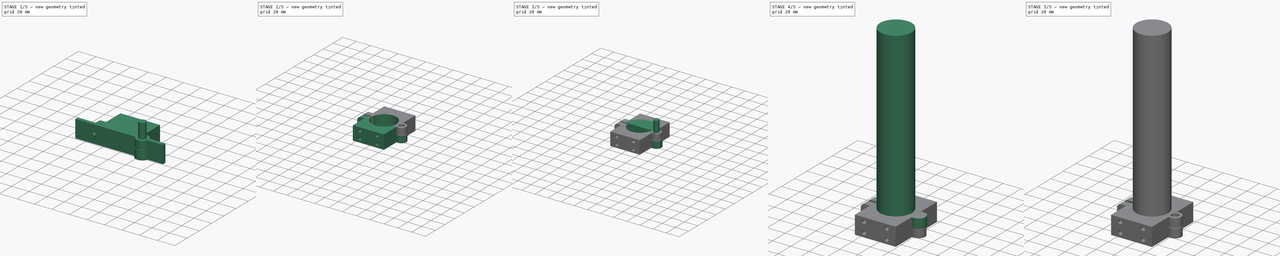
[diagram: build sequence overview — one tinted view per stage of 5, left to right]
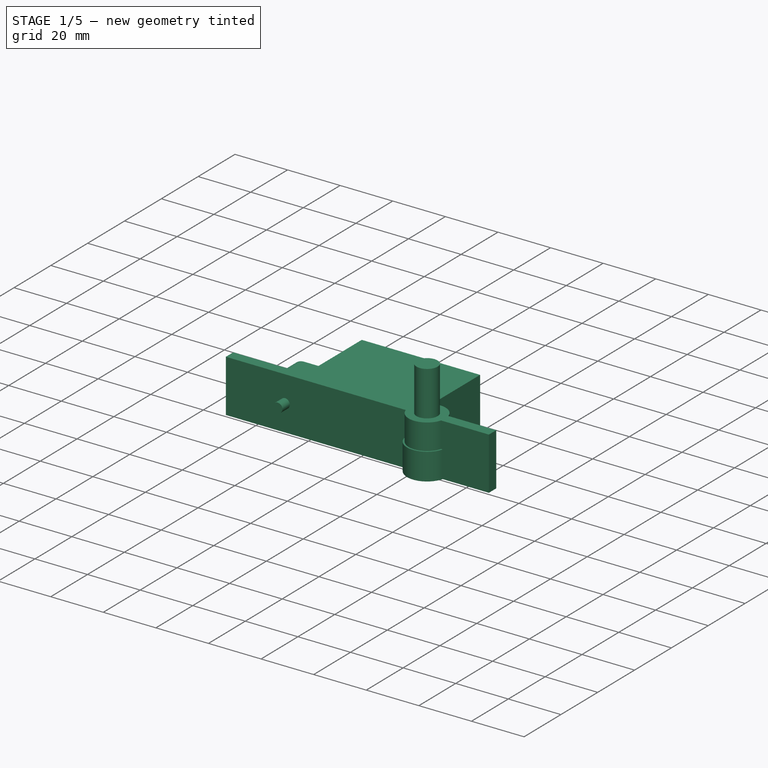
[diagram: stage 1 of 5 — iso view after this stage's code; geometry added in this stage tinted green]
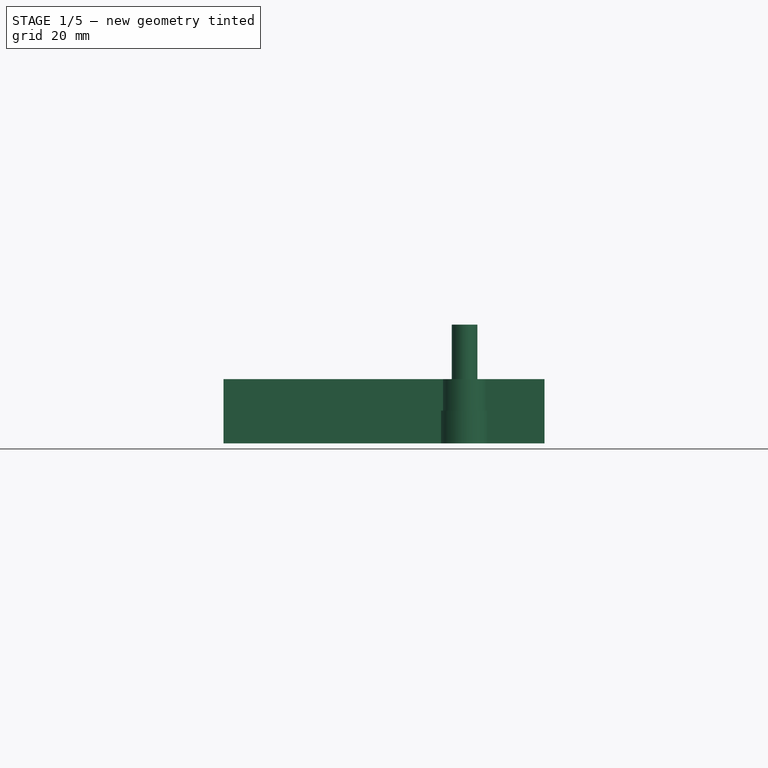
[diagram: stage 1 of 5 — front view after this stage's code; geometry added in this stage tinted green]
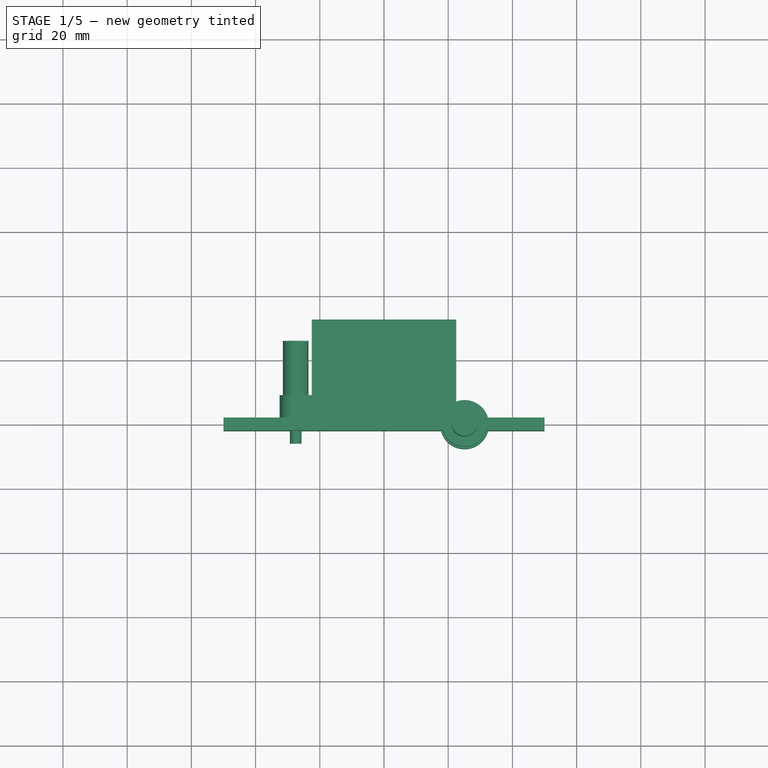
[diagram: stage 1 of 5 — top view after this stage's code; geometry added in this stage tinted green]
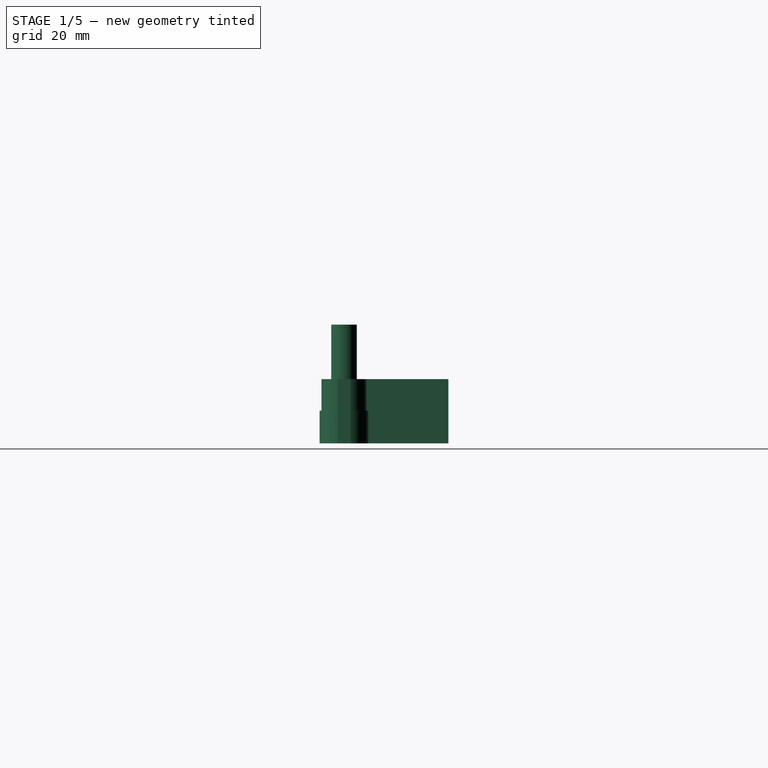
[diagram: stage 1 of 5 — right view after this stage's code; geometry added in this stage tinted green]
FCSTD DOCUMENT  (FreeCAD 0.19R)
Label: bring_r35mm_attach
License: All rights reserved
LicenseURL: http://en.wikipedia.org/wiki/All_rights_reserved
objects: Part::Cylinder×36, Part::MultiFuse×24, Part::Mirroring×9, Part::Cut×9, App::Part×7, Sketcher::SketchObject×5, PartDesign::Pad×5, Part::Box×5, PartDesign::Body×4, Part::FeaturePython×2, Spreadsheet::Sheet×1
note: 102 computed .brp shape members not serialized (recipe doc carries the construction recipe); baked Part::Feature solids carry a one-line shape summary decoded from their .brp

FEATURE [Part::Cylinder] Cylinder031  label="external_cylinder002"
  Angle = 180
  AttacherType = Attacher::AttachEngine3D
  Height = 20
  Radius = 22.5
  expr: Radius = <<p>>.pipe_r + <<p>>.attachment_wall
  expr: Height = <<p>>.attachment_size
FEATURE [Part::Box] Box003  label="middle extract cube002"
  AttacherType = Attacher::AttachEngine3D
  Height = 20
  Length = 100
  Placement = pos=(-50,-2,0) rot=(0,0,1;0rad)
  Width = 4
  expr: Width = <<p>>.middle_gap
  expr: Height = <<p>>.attachment_size
  expr: .Placement.Base.x = -Length / 2
  expr: .Placement.Base.y = -Width / 2
FEATURE [Sketcher::SketchObject] Sketch004
  FullyConstrained = false
  MapMode = 5
  Placement = pos=(0,0,0) rot=(1,0,0;1.5708rad)
  Support = -> [XZ_Plane009]
  expr: Constraints[14] = <<p>>.bolt_hole_offset + 5mm
  expr: Constraints[11] = <<p>>.attachment_size
  expr: Constraints[13] = <<p>>.pipe_r
  sketch-geometry (6):
    g0: LineSegment StartX=-17.5 StartY=0 StartZ=0 EndX=-17.5 EndY=20 EndZ=0
    g1: LineSegment StartX=-17.5 StartY=20 StartZ=0 EndX=-28.0129 EndY=20 EndZ=0
    g2: LineSegment StartX=-17.5 StartY=0 StartZ=0 EndX=-28.0129 EndY=0 EndZ=0
    g3: LineSegment StartX=-32.5 StartY=15.5129 StartZ=0 EndX=-32.5 EndY=4.48715 EndZ=0
    g4: ArcOfCircle CenterX=-28.0129 CenterY=15.5129 CenterZ=0 NormalX=0 NormalY=0 NormalZ=1 AngleXU=0 Radius=4.48715 StartAngle=1.5708 EndAngle=3.14159
    g5: ArcOfCircle CenterX=-28.0129 CenterY=4.48715 CenterZ=0 NormalX=0 NormalY=0 NormalZ=1 AngleXU=0 Radius=4.48715 StartAngle=3.14159 EndAngle=4.71239
  constraints (15):
    c: PointOnObject(g0,g-1)
    c: Vertical(g0)
    c: Coincident(g2,g0)
    c: Horizontal(g2)
    c: Vertical(g3)
    c: Tangent(g4,g1) = -1.5708
    c: Tangent(g4,g3) = -1.5708
    c: Tangent(g5,g3) = -1.5708
    c: Tangent(g5,g2) = 1.5708
    c: Horizontal(g1)
    c: Coincident(g1,g0)
    c: DistanceY(g0,g0) = 20
    c: Equal(g1,g2)
    c: DistanceX(g0,g-1) = 17.5
    c: DistanceX(g3,g-1) = 32.5
FEATURE [PartDesign::Pad] Pad004
  Direction = (1,1,1)
  Length = 9
  Length2 = 100
  Placement = pos=(0,0,0) rot=(1,0,0;1.5708rad)
  Profile = -> Sketch004
  Reversed = true
  Type = 0
  expr: Length = <<p>>.middle_gap + <<p>>.attachment_wall
FEATURE [PartDesign::Body] Body003  label="35mm attachment side body002"
  Group = -> [Sketch004,Pad004]
  Origin = -> Origin009
  Tip = -> Pad004
FEATURE [Part::Cylinder] Cylinder032  label="horizontal body003"
  Angle = 360
  AttacherType = Attacher::AttachEngine3D
  Height = 9.8
  Placement = pos=(25.1,0,0) rot=(0,0,1;0rad)
  Radius = 7
  expr: Height = <<p>>.attachment_size / 2 - <<p>>.horizontal_body_horizontal_gap
  expr: .Placement.Base.x = <<p>>.horizontal_body_offset
  expr: Radius = <<p>>.horizontal_body_r
FEATURE [Part::Mirroring] Part__Mirroring008  label="horizontal body (Mirror #2)002"
  Base = (0,0,10)
  Normal = (0,0,1)
  Source = -> Cylinder032
  expr: .Base.z = <<p>>.attachment_size / 2
FEATURE [Part::Cylinder] Cylinder033  label="horizontal bolt hole002"
  Angle = 360
  AttacherType = Attacher::AttachEngine3D
  Height = 20
  Radius = 1.8
  expr: Radius = <<p>>.hole_r
  expr: Height = <<p>>.attachment_size
FEATURE [Part::Cylinder] Cylinder034  label="horizontal bolt head hole002"
  Angle = 360
  AttacherType = Attacher::AttachEngine3D
  Height = 20
  Placement = pos=(0,0,17) rot=(0,0,1;0rad)
  Radius = 4
  expr: Radius = <<p>>.bolt_head_r
  expr: Height = <<p>>.attachment_size
  expr: .Placement.Base.z = <<p>>.attachment_size - 3mm
FEATURE [Part::MultiFuse] Fusion023  label="horizontal bolt hole fusion002"
  Placement = pos=(25.1,0,0) rot=(0,0,1;0rad)
  Shapes = -> [Cylinder033,Cylinder034]
  expr: .Placement.Base.x = <<p>>.horizontal_body_offset
FEATURE [Part::Cylinder] Cylinder035  label="horizontal body space004"
  Angle = 360
  AttacherType = Attacher::AttachEngine3D
  Height = 10.2
  Placement = pos=(25.1,0,9.8) rot=(0,0,1;0rad)
  Radius = 7.6
  expr: .Placement.Base.x = <<p>>.horizontal_body_offset
  expr: Height = <<p>>.attachment_size / 2 + <<p>>.horizontal_body_horizontal_gap
  expr: Radius = <<p>>.horizontal_body_r + <<p>>.horizontal_body_gap
  expr: .Placement.Base.z = <<p>>.attachment_size / 2 - <<p>>.horizontal_body_horizontal_gap
FEATURE [Part::Mirroring] Part__Mirroring009  label="horizontal body space (Mirror #3)002"
  Base = (0,0,10)
  Normal = (0,0,1)
  Source = -> Cylinder035
  expr: .Base.z = <<p>>.attachment_size / 2
FEATURE [Part::Cylinder] Cylinder036  label="bolt hole002"
  Angle = 360
  AttacherType = Attacher::AttachEngine3D
  Height = 20
  Placement = pos=(0,-12,0) rot=(1,0,0;1.5708rad)
  Radius = 1.8
  expr: Radius = <<p>>.hole_r
FEATURE [Part::Cylinder] Cylinder037  label="bolt head hole002"
  Angle = 360
  AttacherType = Attacher::AttachEngine3D
  Height = 20
  Placement = pos=(0,0,0) rot=(1,0,0;1.5708rad)
  Radius = 4
  expr: Radius = <<p>>.bolt_head_r
FEATURE [Part::MultiFuse] Fusion025  label="bolt hole fusion002"
  Placement = pos=(-27.5,26,10) rot=(0,0,1;0rad)
  Shapes = -> [Cylinder036,Cylinder037]
  expr: .Placement.Base.x = -<<p>>.bolt_hole_offset
  expr: .Placement.Base.z = <<p>>.attachment_size / 2
FEATURE [Part::MultiFuse] Fusion024  label="35 mm attachment bolt extract001"
  Shapes = -> [Fusion023,Part__Mirroring009,Fusion025]
FEATURE [Part::Box] Box004  label="flat attachment cube001"
  AttacherType = Attacher::AttachEngine3D
  Height = 20
  Length = 45
  Placement = pos=(-22.5,0,0) rot=(0,0,1;0rad)
  Width = 32.5
  expr: Height = <<p>>.attachment_size
  expr: Width = <<p>>.pipe_r + <<p>>.attachment_wall + <<p>>.insert_hole_size
  expr: .Placement.Base.x = -Length / 2
  expr: Length = (<<p>>.pipe_r + <<p>>.attachment_wall) * 2
FEATURE [Part::MultiFuse] Fusion021  label="35mm pipe attachment fusion002"
  Shapes = -> [Body003,Cylinder031,Box004]
FEATURE [Part::Cylinder] Cylinder038  label="insert size hole001"
  Angle = 360
  AttacherType = Attacher::AttachEngine3D
  Height = 10
  Radius = 2.2
  expr: Height = <<p>>.insert_hole_size
  expr: Radius = <<p>>.insert_r
FEATURE [Part::FeaturePython] Array001  label="insert size hole array001"  # Draft array (typed FeaturePython)
  Angle = 360
  ArrayType = 0
  Axis = (0,0,1)
  Base = -> Cylinder038
  Center = (0,0,0)
  Count = 4
  ExpandArray = false
  Fuse = false
  IntervalAxis = (0,0,0)
  IntervalX = (25,0,0)
  IntervalY = (0,11,0)
  IntervalZ = (0,0,100)
  NumberCircles = 3
  NumberPolar = 5
  NumberX = 2
  NumberY = 2
  NumberZ = 1
  Placement = pos=(-12.5,32.5,4.5) rot=(1,0,0;1.5708rad)
  PlacementList = 4 placements: [(0,0,0),(0,11,0),(25,0,0),(25,11,0)]
  RadialDistance = 50
  ScaleList = (4) [(1,1,1),(1,1,1),(1,1,1),(1,1,1)]
  Symmetry = 1
  TangentialDistance = 25
  expr: .Placement.Base.y = <<p>>.pipe_r + <<p>>.attachment_wall + <<p>>.insert_hole_size
  expr: .Placement.Base.x = -.IntervalX.x / 2
  expr: .IntervalY.y = <<p>>.insert_hole_interval_y
  expr: .IntervalX.x = <<p>>.insert_hole_interval_x
  expr: .Placement.Base.z = (<<p>>.attachment_size - .IntervalY.y) / 2
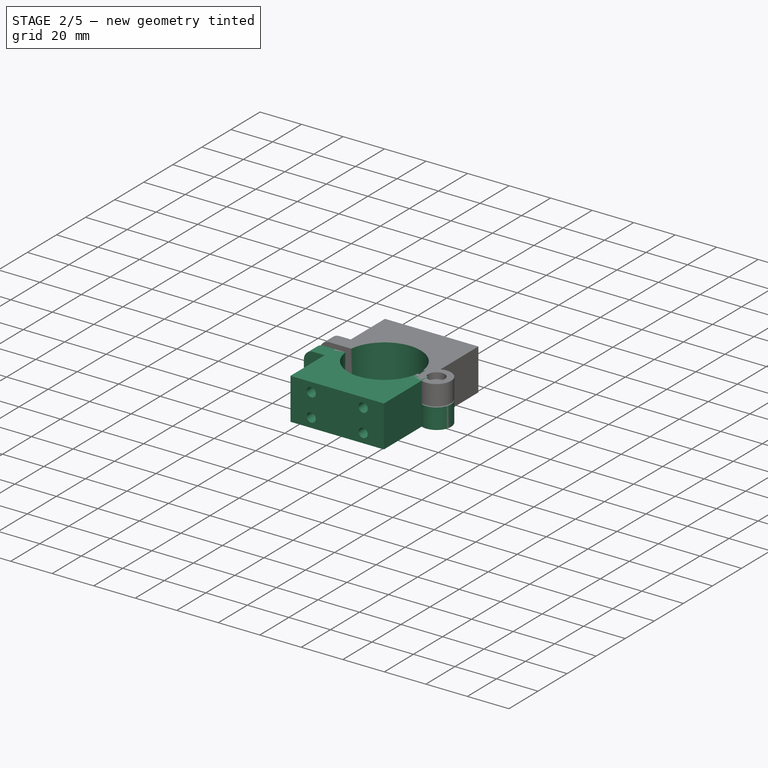
[diagram: stage 2 of 5 — iso view after this stage's code; geometry added in this stage tinted green]
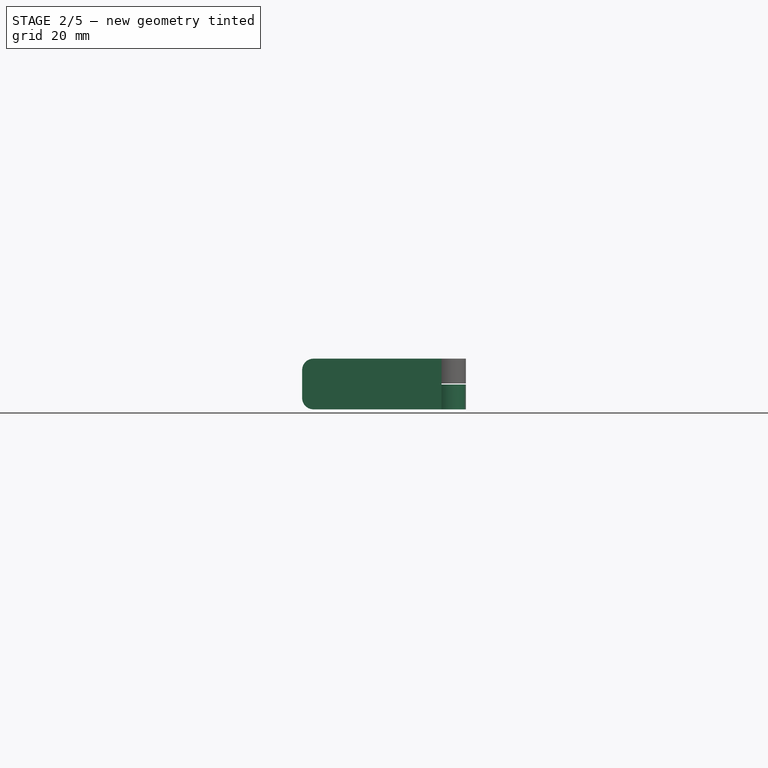
[diagram: stage 2 of 5 — front view after this stage's code; geometry added in this stage tinted green]
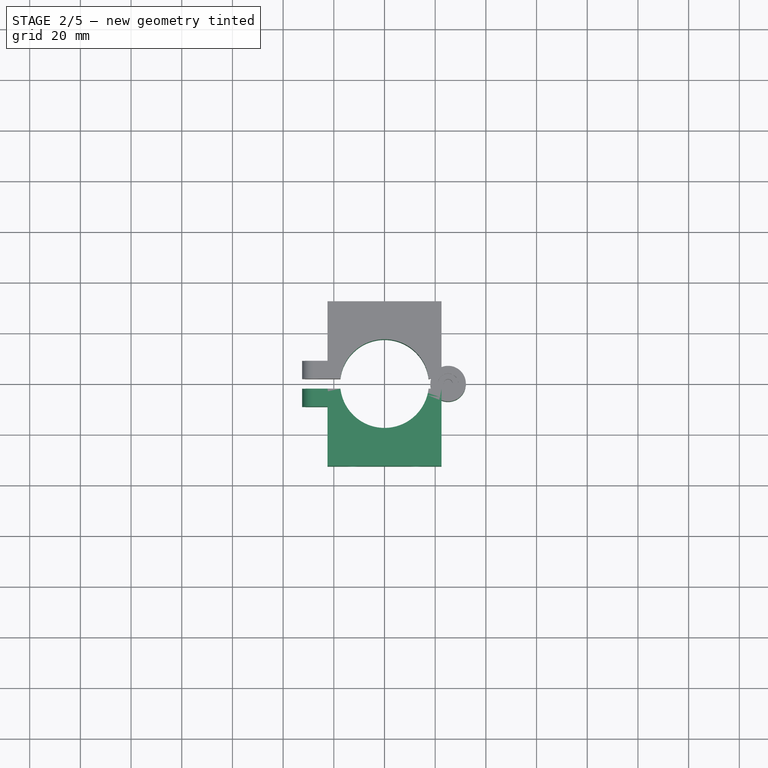
[diagram: stage 2 of 5 — top view after this stage's code; geometry added in this stage tinted green]
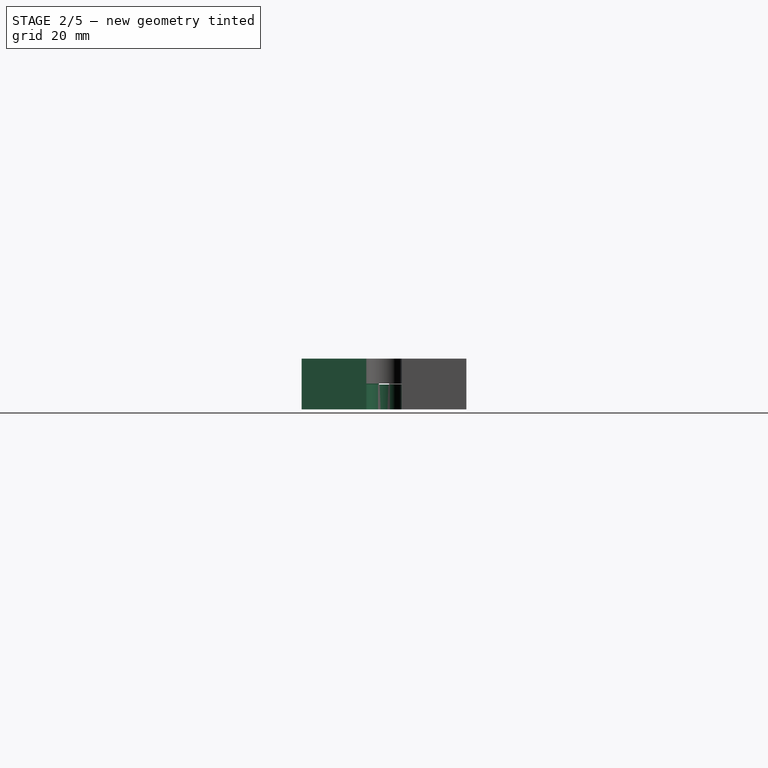
[diagram: stage 2 of 5 — right view after this stage's code; geometry added in this stage tinted green]
FEATURE [Part::Cylinder] Cylinder024  label="internal_cylinder001"
  Angle = 180
  AttacherType = Attacher::AttachEngine3D
  Height = 20
  Radius = 17.5
  expr: Radius = <<p>>.pipe_r
  expr: Height = <<p>>.attachment_size
FEATURE [Part::Cylinder] Cylinder025  label="external_cylinder001"
  Angle = 180
  AttacherType = Attacher::AttachEngine3D
  Height = 20
  Radius = 22.5
  expr: Radius = <<p>>.pipe_r + <<p>>.attachment_wall
  expr: Height = <<p>>.attachment_size
FEATURE [Part::Box] Box001  label="middle extract cube001"
  AttacherType = Attacher::AttachEngine3D
  Height = 20
  Length = 100
  Placement = pos=(-50,-2,0) rot=(0,0,1;0rad)
  Width = 4
  expr: Width = <<p>>.middle_gap
  expr: Height = <<p>>.attachment_size
  expr: .Placement.Base.x = -Length / 2
  expr: .Placement.Base.y = -Width / 2
FEATURE [Sketcher::SketchObject] Sketch003
  FullyConstrained = false
  MapMode = 5
  Placement = pos=(0,0,0) rot=(1,0,0;1.5708rad)
  Support = -> [XZ_Plane007]
  expr: Constraints[14] = <<p>>.bolt_hole_offset + 5mm
  expr: Constraints[11] = <<p>>.attachment_size
  expr: Constraints[13] = <<p>>.pipe_r
  sketch-geometry (6):
    g0: LineSegment StartX=-17.5 StartY=0 StartZ=0 EndX=-17.5 EndY=20 EndZ=0
    g1: LineSegment StartX=-17.5 StartY=20 StartZ=0 EndX=-28.0129 EndY=20 EndZ=0
    g2: LineSegment StartX=-17.5 StartY=0 StartZ=0 EndX=-28.0129 EndY=0 EndZ=0
    g3: LineSegment StartX=-32.5 StartY=15.5129 StartZ=0 EndX=-32.5 EndY=4.48715 EndZ=0
    g4: ArcOfCircle CenterX=-28.0129 CenterY=15.5129 CenterZ=0 NormalX=0 NormalY=0 NormalZ=1 AngleXU=0 Radius=4.48715 StartAngle=1.5708 EndAngle=3.14159
    g5: ArcOfCircle CenterX=-28.0129 CenterY=4.48715 CenterZ=0 NormalX=0 NormalY=0 NormalZ=1 AngleXU=0 Radius=4.48715 StartAngle=3.14159 EndAngle=4.71239
  constraints (15):
    c: PointOnObject(g0,g-1)
    c: Vertical(g0)
    c: Coincident(g2,g0)
    c: Horizontal(g2)
    c: Vertical(g3)
    c: Tangent(g4,g1) = -1.5708
    c: Tangent(g4,g3) = -1.5708
    c: Tangent(g5,g3) = -1.5708
    c: Tangent(g5,g2) = 1.5708
    c: Horizontal(g1)
    c: Coincident(g1,g0)
    c: DistanceY(g0,g0) = 20
    c: Equal(g1,g2)
    c: DistanceX(g0,g-1) = 17.5
    c: DistanceX(g3,g-1) = 32.5
FEATURE [PartDesign::Pad] Pad003
  Direction = (1,1,1)
  Length = 9
  Length2 = 100
  Placement = pos=(0,0,0) rot=(1,0,0;1.5708rad)
  Profile = -> Sketch003
  Reversed = true
  Type = 0
  expr: Length = <<p>>.middle_gap + <<p>>.attachment_wall
FEATURE [Part::Cylinder] Cylinder028  label="horizontal body002"
  Angle = 360
  AttacherType = Attacher::AttachEngine3D
  Height = 9.8
  Placement = pos=(25.1,0,0) rot=(0,0,1;0rad)
  Radius = 7
  expr: Height = <<p>>.attachment_size / 2 - <<p>>.horizontal_body_horizontal_gap
  expr: .Placement.Base.x = <<p>>.horizontal_body_offset
  expr: Radius = <<p>>.horizontal_body_r
FEATURE [Part::Box] Box002  label="flat attachment cube"
  AttacherType = Attacher::AttachEngine3D
  Height = 20
  Length = 45
  Placement = pos=(-22.5,0,0) rot=(0,0,1;0rad)
  Width = 32.5
  expr: Length = (<<p>>.pipe_r + <<p>>.attachment_wall) * 2
  expr: .Placement.Base.x = -Length / 2
  expr: Width = <<p>>.pipe_r + <<p>>.attachment_wall + <<p>>.insert_hole_size
  expr: Height = <<p>>.attachment_size
FEATURE [Part::MultiFuse] Fusion017  label="35mm pipe attachment fusion001"
  Shapes = -> [Body002,Cylinder025,Box002]
FEATURE [Part::Cylinder] Cylinder029  label="insert size hole"
  Angle = 360
  AttacherType = Attacher::AttachEngine3D
  Height = 10
  Radius = 2.2
  expr: Radius = <<p>>.insert_r
  expr: Height = <<p>>.insert_hole_size
FEATURE [Part::FeaturePython] Array  label="insert size hole array"  # Draft array (typed FeaturePython)
  Angle = 360
  ArrayType = 0
  Axis = (0,0,1)
  Base = -> Cylinder029
  Center = (0,0,0)
  Count = 4
  ExpandArray = false
  Fuse = false
  IntervalAxis = (0,0,0)
  IntervalX = (25,0,0)
  IntervalY = (0,11,0)
  IntervalZ = (0,0,100)
  NumberCircles = 3
  NumberPolar = 5
  NumberX = 2
  NumberY = 2
  NumberZ = 1
  Placement = pos=(-12.5,32.5,4.5) rot=(1,0,0;1.5708rad)
  PlacementList = 4 placements: [(0,0,0),(0,11,0),(25,0,0),(25,11,0)]
  RadialDistance = 50
  ScaleList = (4) [(1,1,1),(1,1,1),(1,1,1),(1,1,1)]
  Symmetry = 1
  TangentialDistance = 25
  expr: .Placement.Base.z = (<<p>>.attachment_size - .IntervalY.y) / 2
  expr: .IntervalX.x = <<p>>.insert_hole_interval_x
  expr: .IntervalY.y = <<p>>.insert_hole_interval_y
  expr: .Placement.Base.x = -.IntervalX.x / 2
  expr: .Placement.Base.y = <<p>>.pipe_r + <<p>>.attachment_wall + <<p>>.insert_hole_size
FEATURE [Part::MultiFuse] Fusion016  label="35mm pipe attach extract001"
  Shapes = -> [Box001,Cylinder024,Array]
FEATURE [Part::Cut] Cut023015007  label="35mm pipe attachment cut001"
  Base = -> Fusion017
  Tool = -> Fusion016
FEATURE [Part::Mirroring] Part__Mirroring007  label="35mm pipe attachment cut (Mirror #5)001"
  Base = (0,0,0)
  Normal = (0,1,0)
  Source = -> Cut023015007
FEATURE [Part::MultiFuse] Fusion019  label="35mm pipe attachment insert fusion001"
  Shapes = -> [Part__Mirroring007,Cylinder028]
FEATURE [App::Part] Part005  label="35mm pipe cube attachment insert part"
  Group = -> [Cut023015006]
  Origin = -> Origin008
FEATURE [Part::Cylinder] Cylinder030  label="internal_cylinder002"
  Angle = 180
  AttacherType = Attacher::AttachEngine3D
  Height = 20
  Radius = 17.5
  expr: Radius = <<p>>.pipe_r
  expr: Height = <<p>>.attachment_size
FEATURE [Part::MultiFuse] Fusion020  label="35mm pipe attach extract002"
  Shapes = -> [Box003,Cylinder030,Array001]
FEATURE [Part::Cut] Cut023015008  label="35mm pipe attachment cut002"
  Base = -> Fusion021
  Tool = -> Fusion020
FEATURE [Part::MultiFuse] Fusion022  label="35mm pipe attachment bolt fusion001"
  Shapes = -> [Part__Mirroring008,Cut023015008]
FEATURE [Part::Cut] Cut023015009  label="35mm pipe attachment bolt cut001"
  Base = -> Fusion022
  Tool = -> Fusion024
FEATURE [App::Part] Part006  label="35mm pipe cube attachment bolt part"
  Group = -> [Cut023015009]
  Origin = -> Origin010
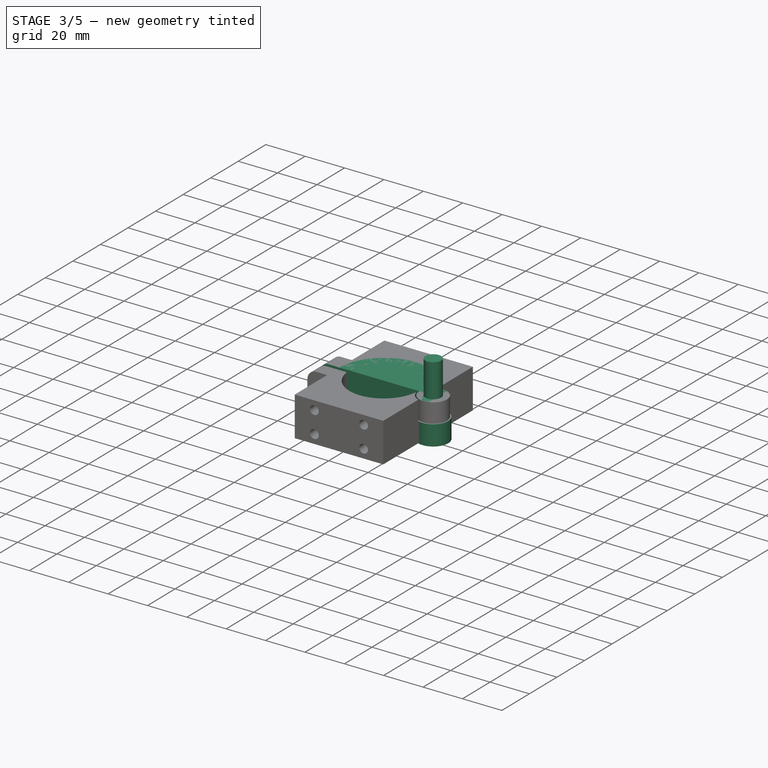
[diagram: stage 3 of 5 — iso view after this stage's code; geometry added in this stage tinted green]
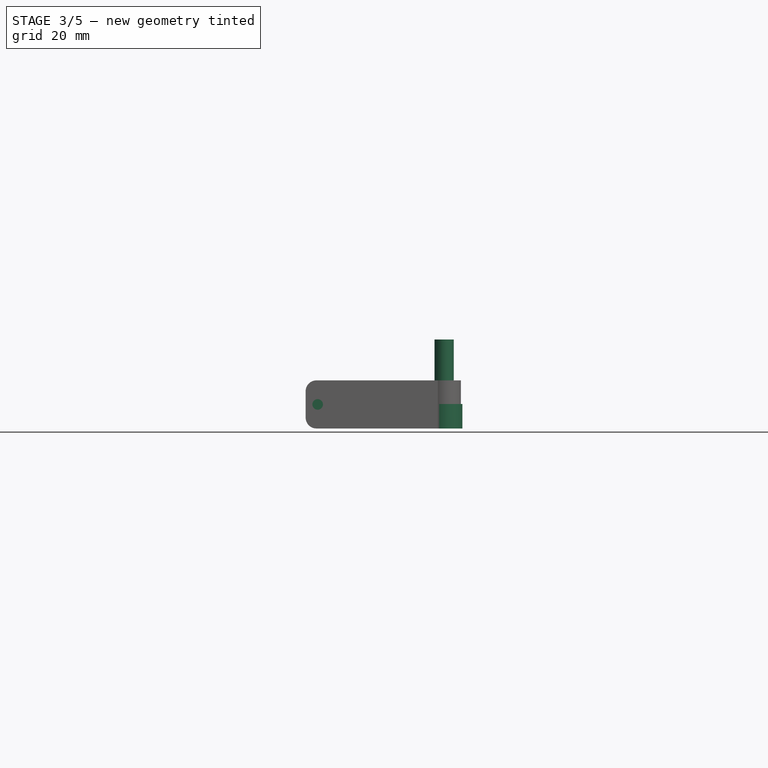
[diagram: stage 3 of 5 — front view after this stage's code; geometry added in this stage tinted green]
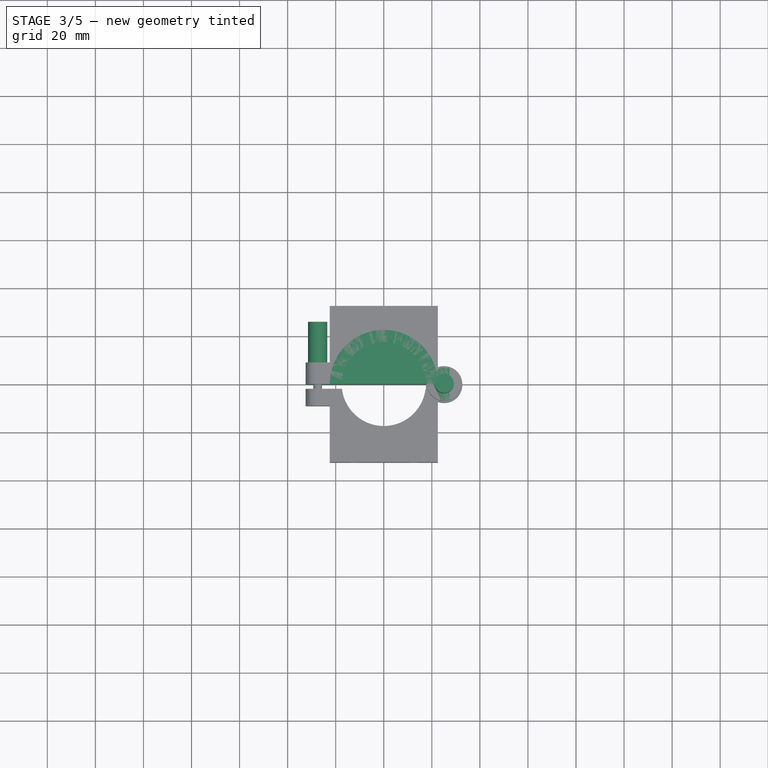
[diagram: stage 3 of 5 — top view after this stage's code; geometry added in this stage tinted green]
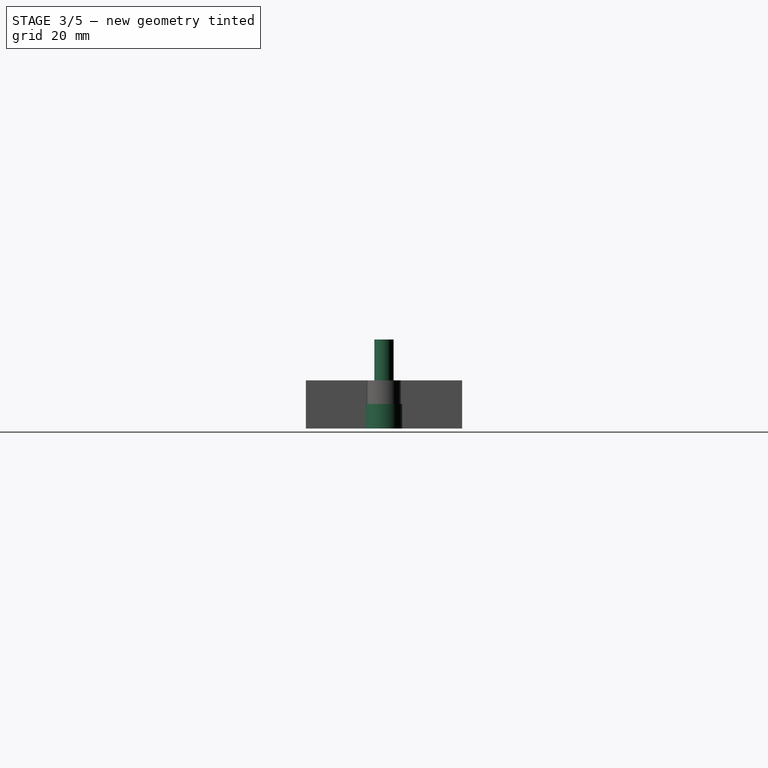
[diagram: stage 3 of 5 — right view after this stage's code; geometry added in this stage tinted green]
FEATURE [Part::Cylinder] Cylinder013  label="external_cylinder"
  Angle = 180
  AttacherType = Attacher::AttachEngine3D
  Height = 20
  Radius = 22.5
  expr: Height = <<p>>.attachment_size
  expr: Radius = <<p>>.pipe_r + <<p>>.attachment_wall
FEATURE [Sketcher::SketchObject] Sketch002
  FullyConstrained = false
  MapMode = 5
  Placement = pos=(0,0,0) rot=(1,0,0;1.5708rad)
  Support = -> [XZ_Plane004]
  expr: Constraints[13] = <<p>>.pipe_r
  expr: Constraints[11] = <<p>>.attachment_size
  expr: Constraints[14] = <<p>>.bolt_hole_offset + 5mm
  sketch-geometry (6):
    g0: LineSegment StartX=-17.5 StartY=0 StartZ=0 EndX=-17.5 EndY=20 EndZ=0
    g1: LineSegment StartX=-17.5 StartY=20 StartZ=0 EndX=-28.0129 EndY=20 EndZ=0
    g2: LineSegment StartX=-17.5 StartY=0 StartZ=0 EndX=-28.0129 EndY=0 EndZ=0
    g3: LineSegment StartX=-32.5 StartY=15.5129 StartZ=0 EndX=-32.5 EndY=4.48715 EndZ=0
    g4: ArcOfCircle CenterX=-28.0129 CenterY=15.5129 CenterZ=0 NormalX=0 NormalY=0 NormalZ=1 AngleXU=0 Radius=4.48715 StartAngle=1.5708 EndAngle=3.14159
    g5: ArcOfCircle CenterX=-28.0129 CenterY=4.48715 CenterZ=0 NormalX=0 NormalY=0 NormalZ=1 AngleXU=0 Radius=4.48715 StartAngle=3.14159 EndAngle=4.71239
  constraints (15):
    c: PointOnObject(g0,g-1)
    c: Vertical(g0)
    c: Coincident(g2,g0)
    c: Horizontal(g2)
    c: Vertical(g3)
    c: Tangent(g4,g1) = -1.5708
    c: Tangent(g4,g3) = -1.5708
    c: Tangent(g5,g3) = -1.5708
    c: Tangent(g5,g2) = 1.5708
    c: Horizontal(g1)
    c: Coincident(g1,g0)
    c: DistanceY(g0,g0) = 20
    c: Equal(g1,g2)
    c: DistanceX(g0,g-1) = 17.5
    c: DistanceX(g3,g-1) = 32.5
FEATURE [PartDesign::Pad] Pad002
  Direction = (1,1,1)
  Length = 9
  Length2 = 100
  Placement = pos=(0,0,0) rot=(1,0,0;1.5708rad)
  Profile = -> Sketch002
  Reversed = true
  Type = 0
  expr: Length = <<p>>.middle_gap + <<p>>.attachment_wall
FEATURE [Part::Cylinder] Cylinder014  label="horizontal body001"
  Angle = 360
  AttacherType = Attacher::AttachEngine3D
  Height = 9.8
  Placement = pos=(25.1,0,0) rot=(0,0,1;0rad)
  Radius = 7
  expr: Radius = <<p>>.horizontal_body_r
  expr: .Placement.Base.x = <<p>>.horizontal_body_offset
  expr: Height = <<p>>.attachment_size / 2 - <<p>>.horizontal_body_horizontal_gap
FEATURE [Part::Mirroring] Part__Mirroring005  label="horizontal body (Mirror #2)001"
  Base = (0,0,10)
  Normal = (0,0,1)
  Source = -> Cylinder014
  expr: .Base.z = <<p>>.attachment_size / 2
FEATURE [Part::Cylinder] Cylinder018  label="horizontal bolt hole001"
  Angle = 360
  AttacherType = Attacher::AttachEngine3D
  Height = 20
  Radius = 1.8
  expr: Height = <<p>>.attachment_size
  expr: Radius = <<p>>.hole_r
FEATURE [Part::Cylinder] Cylinder019  label="horizontal bolt head hole001"
  Angle = 360
  AttacherType = Attacher::AttachEngine3D
  Height = 20
  Placement = pos=(0,0,17) rot=(0,0,1;0rad)
  Radius = 4
  expr: .Placement.Base.z = <<p>>.attachment_size - 3mm
  expr: Height = <<p>>.attachment_size
  expr: Radius = <<p>>.bolt_head_r
FEATURE [Part::MultiFuse] Fusion013  label="horizontal bolt hole fusion001"
  Placement = pos=(25.1,0,0) rot=(0,0,1;0rad)
  Shapes = -> [Cylinder018,Cylinder019]
  expr: .Placement.Base.x = <<p>>.horizontal_body_offset
FEATURE [Part::Cylinder] Cylinder020  label="horizontal body space002"
  Angle = 360
  AttacherType = Attacher::AttachEngine3D
  Height = 10.2
  Placement = pos=(25.1,0,9.8) rot=(0,0,1;0rad)
  Radius = 7.6
  expr: .Placement.Base.z = <<p>>.attachment_size / 2 - <<p>>.horizontal_body_horizontal_gap
  expr: Radius = <<p>>.horizontal_body_r + <<p>>.horizontal_body_gap
  expr: Height = <<p>>.attachment_size / 2 + <<p>>.horizontal_body_horizontal_gap
  expr: .Placement.Base.x = <<p>>.horizontal_body_offset
FEATURE [Part::Mirroring] Part__Mirroring006  label="horizontal body space (Mirror #3)001"
  Base = (0,0,10)
  Normal = (0,0,1)
  Source = -> Cylinder020
  expr: .Base.z = <<p>>.attachment_size / 2
FEATURE [Part::Cylinder] Cylinder021  label="bolt hole001"
  Angle = 360
  AttacherType = Attacher::AttachEngine3D
  Height = 20
  Placement = pos=(0,-12,0) rot=(1,0,0;1.5708rad)
  Radius = 1.8
  expr: Radius = <<p>>.hole_r
FEATURE [Part::Cylinder] Cylinder022  label="bolt head hole001"
  Angle = 360
  AttacherType = Attacher::AttachEngine3D
  Height = 20
  Placement = pos=(0,0,0) rot=(1,0,0;1.5708rad)
  Radius = 4
  expr: Radius = <<p>>.bolt_head_r
FEATURE [Part::MultiFuse] Fusion015  label="bolt hole fusion001"
  Placement = pos=(-27.5,26,10) rot=(0,0,1;0rad)
  Shapes = -> [Cylinder021,Cylinder022]
  expr: .Placement.Base.z = <<p>>.attachment_size / 2
  expr: .Placement.Base.x = -<<p>>.bolt_hole_offset
FEATURE [Part::MultiFuse] Fusion014  label="35 mm attachment bolt extract"
  Shapes = -> [Fusion013,Part__Mirroring006,Fusion015]
FEATURE [App::Part] Part004  label="35mm pipe attachment bolt part001"
  Group = -> [Cut023015005]
  Origin = -> Origin006
FEATURE [Part::Cylinder] Cylinder023  label="insert hole002"
  Angle = 360
  AttacherType = Attacher::AttachEngine3D
  Height = 20
  Placement = pos=(-27.5,0,10) rot=(1,0,0;1.5708rad)
  Radius = 2.2
  expr: .Placement.Base.x = -<<p>>.bolt_hole_offset
  expr: Radius = <<p>>.insert_r
  expr: .Placement.Base.z = <<p>>.attachment_size / 2
FEATURE [PartDesign::Body] Body002  label="35mm attachment side body001"
  Group = -> [Sketch003,Pad003]
  Origin = -> Origin007
  Tip = -> Pad003
FEATURE [Part::Cylinder] Cylinder026  label="horizontal body space003"
  Angle = 360
  AttacherType = Attacher::AttachEngine3D
  Height = 10.2
  Placement = pos=(25.1,0,9.8) rot=(0,0,1;0rad)
  Radius = 7.6
  expr: .Placement.Base.x = <<p>>.horizontal_body_offset
  expr: Height = <<p>>.attachment_size / 2 + <<p>>.horizontal_body_horizontal_gap
  expr: Radius = <<p>>.horizontal_body_r + <<p>>.horizontal_body_gap
  expr: .Placement.Base.z = <<p>>.attachment_size / 2 - <<p>>.horizontal_body_horizontal_gap
FEATURE [Part::Cylinder] Cylinder027  label="horizontal insert hole002"
  Angle = 360
  AttacherType = Attacher::AttachEngine3D
  Height = 20
  Placement = pos=(25.1,0,0) rot=(0,0,1;0rad)
  Radius = 2.2
  expr: Radius = <<p>>.insert_r
  expr: Height = <<p>>.attachment_size
  expr: .Placement.Base.x = <<p>>.horizontal_body_offset
FEATURE [Part::MultiFuse] Fusion018  label="35 mm attachment insert extract001"
  Shapes = -> [Cylinder023,Cylinder026,Cylinder027]
FEATURE [Part::Cut] Cut023015006  label="35mm pipe attachment insert cut001"
  Base = -> Fusion019
  Tool = -> Fusion018
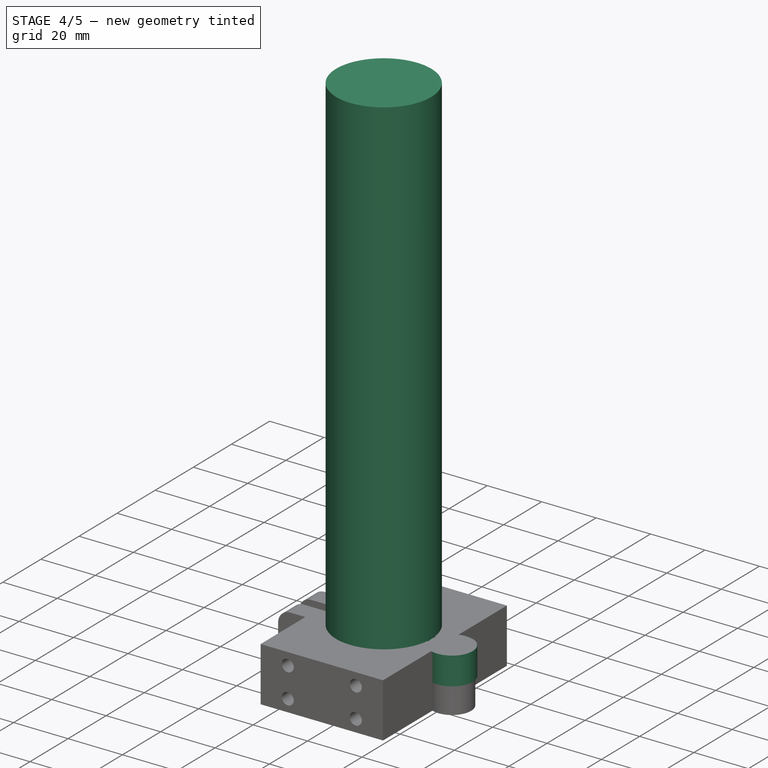
[diagram: stage 4 of 5 — iso view after this stage's code; geometry added in this stage tinted green]
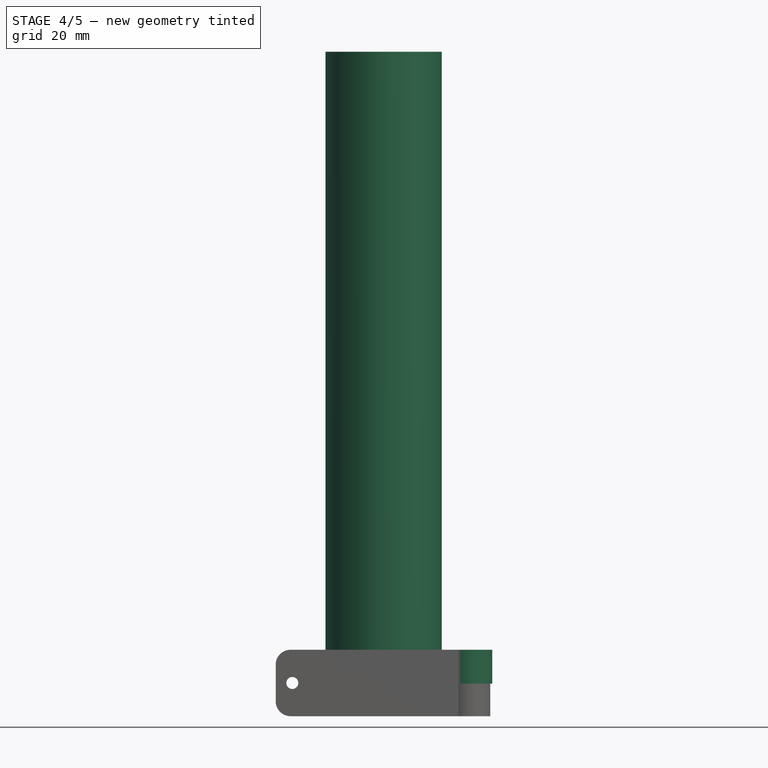
[diagram: stage 4 of 5 — front view after this stage's code; geometry added in this stage tinted green]
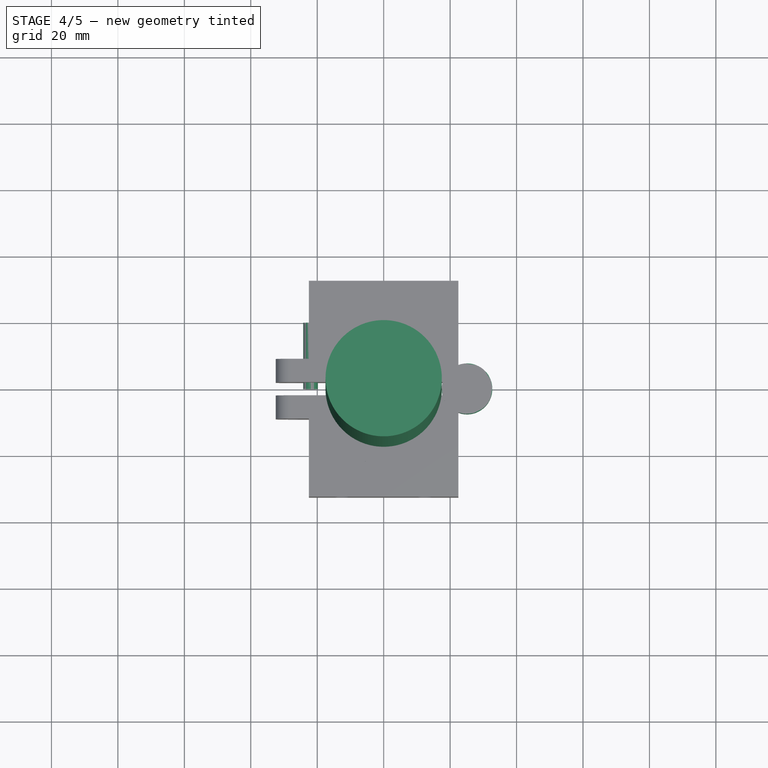
[diagram: stage 4 of 5 — top view after this stage's code; geometry added in this stage tinted green]
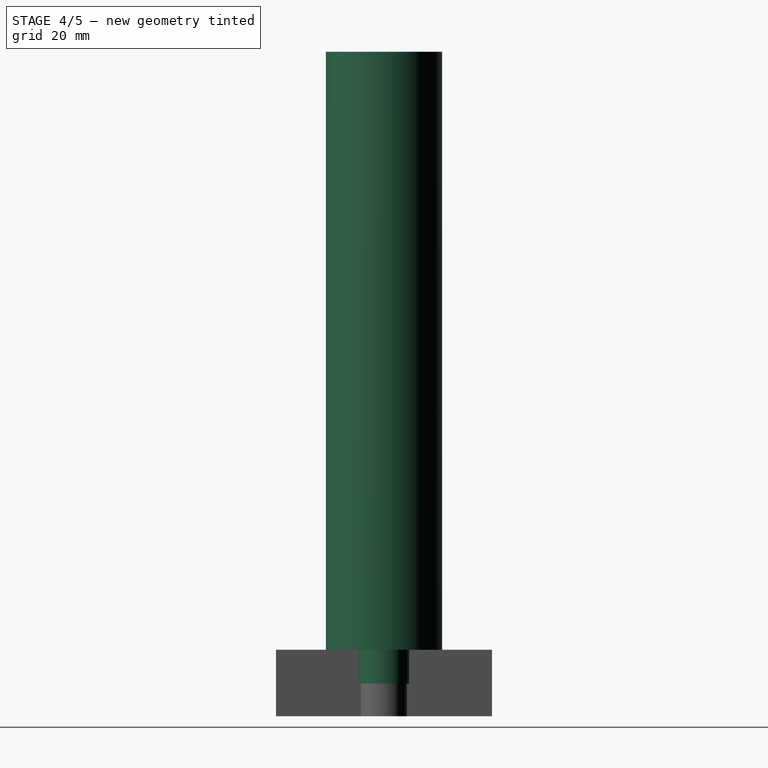
[diagram: stage 4 of 5 — right view after this stage's code; geometry added in this stage tinted green]
FEATURE [Part::Cylinder] Cylinder002  label="insert hole"
  Angle = 360
  AttacherType = Attacher::AttachEngine3D
  Height = 20
  Placement = pos=(-22,20,10) rot=(1,0,0;1.5708rad)
  Radius = 2.2
  expr: Radius = <<p>>.insert_r
  expr: .Placement.Base.z = <<p>>.attachment_size / 2
  expr: .Placement.Base.y = Height
FEATURE [Part::Cylinder] Cylinder008  label="horizontal insert hole"
  Angle = 360
  AttacherType = Attacher::AttachEngine3D
  Height = 20
  Placement = pos=(25.1,0,0) rot=(0,0,1;0rad)
  Radius = 2.2
  expr: Radius = <<p>>.insert_r
  expr: Height = <<p>>.attachment_size
  expr: .Placement.Base.x = <<p>>.horizontal_body_offset
FEATURE [Part::Cylinder] Cylinder010  label="horizontal body space"
  Angle = 360
  AttacherType = Attacher::AttachEngine3D
  Height = 10.2
  Placement = pos=(25.1,0,9.8) rot=(0,0,1;0rad)
  Radius = 7.6
  expr: .Placement.Base.x = <<p>>.horizontal_body_offset
  expr: Height = <<p>>.attachment_size / 2 + <<p>>.horizontal_body_horizontal_gap
  expr: Radius = <<p>>.horizontal_body_r + <<p>>.horizontal_body_gap
  expr: .Placement.Base.z = <<p>>.attachment_size / 2 - <<p>>.horizontal_body_horizontal_gap
FEATURE [App::Part] Part  label="35 mm attachment part"
  Group = -> [Cut,Cut023015002]
  Origin = -> Origin
FEATURE [Part::Cylinder] Cylinder011  label="35mm pipe mockup"
  Angle = 360
  AttacherType = Attacher::AttachEngine3D
  Height = 200
  Radius = 17.5
  expr: Radius = <<p>>.pipe_r
FEATURE [Part::Cylinder] Cylinder012  label="internal_cylinder"
  Angle = 180
  AttacherType = Attacher::AttachEngine3D
  Height = 20
  Radius = 17.5
  expr: Height = <<p>>.attachment_size
  expr: Radius = <<p>>.pipe_r
FEATURE [Part::Box] Box  label="middle extract cube"
  AttacherType = Attacher::AttachEngine3D
  Height = 20
  Length = 100
  Placement = pos=(-50,-2,0) rot=(0,0,1;0rad)
  Width = 4
  expr: .Placement.Base.y = -Width / 2
  expr: .Placement.Base.x = -Length / 2
  expr: Height = <<p>>.attachment_size
  expr: Width = <<p>>.middle_gap
FEATURE [Part::MultiFuse] Fusion008  label="35mm pipe attach extract"
  Shapes = -> [Box,Cylinder012]
FEATURE [PartDesign::Body] Body001  label="35mm attachment side body"
  Group = -> [Sketch002,Pad002]
  Origin = -> Origin004
  Tip = -> Pad002
FEATURE [App::Part] Part002  label="35mm attachment side"
  Group = -> [Body001]
  Origin = -> Origin003
FEATURE [Part::MultiFuse] Fusion009  label="35mm pipe attachment fusion"
  Shapes = -> [Body001,Cylinder013]
FEATURE [Part::Cut] Cut023015003  label="35mm pipe attachment cut"
  Base = -> Fusion009
  Tool = -> Fusion008
FEATURE [App::Part] Part001  label="35mm pipe attachment bolt part"
  Group = -> [Cut023015003]
  Origin = -> Origin002
FEATURE [Part::Mirroring] Part__Mirroring004  label="35mm pipe attachment cut (Mirror #5)"
  Base = (0,0,0)
  Normal = (0,1,0)
  Source = -> Cut023015003
FEATURE [Part::Cylinder] Cylinder015  label="insert hole001"
  Angle = 360
  AttacherType = Attacher::AttachEngine3D
  Height = 20
  Placement = pos=(-27.5,0,10) rot=(1,0,0;1.5708rad)
  Radius = 2.2
  expr: .Placement.Base.z = <<p>>.attachment_size / 2
  expr: Radius = <<p>>.insert_r
  expr: .Placement.Base.x = -<<p>>.bolt_hole_offset
FEATURE [Part::Cylinder] Cylinder016  label="horizontal insert hole001"
  Angle = 360
  AttacherType = Attacher::AttachEngine3D
  Height = 20
  Placement = pos=(25.1,0,0) rot=(0,0,1;0rad)
  Radius = 2.2
  expr: .Placement.Base.x = <<p>>.horizontal_body_offset
  expr: Height = <<p>>.attachment_size
  expr: Radius = <<p>>.insert_r
FEATURE [Part::Cylinder] Cylinder017  label="horizontal body space001"
  Angle = 360
  AttacherType = Attacher::AttachEngine3D
  Height = 10.2
  Placement = pos=(25.1,0,9.8) rot=(0,0,1;0rad)
  Radius = 7.6
  expr: .Placement.Base.z = <<p>>.attachment_size / 2 - <<p>>.horizontal_body_horizontal_gap
  expr: Radius = <<p>>.horizontal_body_r + <<p>>.horizontal_body_gap
  expr: Height = <<p>>.attachment_size / 2 + <<p>>.horizontal_body_horizontal_gap
  expr: .Placement.Base.x = <<p>>.horizontal_body_offset
FEATURE [Part::MultiFuse] Fusion010  label="35 mm attachment insert extract"
  Shapes = -> [Cylinder015,Cylinder017,Cylinder016]
FEATURE [Part::MultiFuse] Fusion011  label="35mm pipe attachment insert fusion"
  Shapes = -> [Part__Mirroring004,Cylinder014]
FEATURE [Part::Cut] Cut023015004  label="35mm pipe attachment insert cut"
  Base = -> Fusion011
  Tool = -> Fusion010
FEATURE [App::Part] Part003  label="35mm pipe attachment insert part"
  Group = -> [Cut023015004]
  Origin = -> Origin005
FEATURE [Part::MultiFuse] Fusion012  label="35mm pipe attachment bolt fusion"
  Shapes = -> [Part__Mirroring005,Cut023015003]
FEATURE [Part::Cut] Cut023015005  label="35mm pipe attachment bolt cut"
  Base = -> Fusion012
  Tool = -> Fusion014
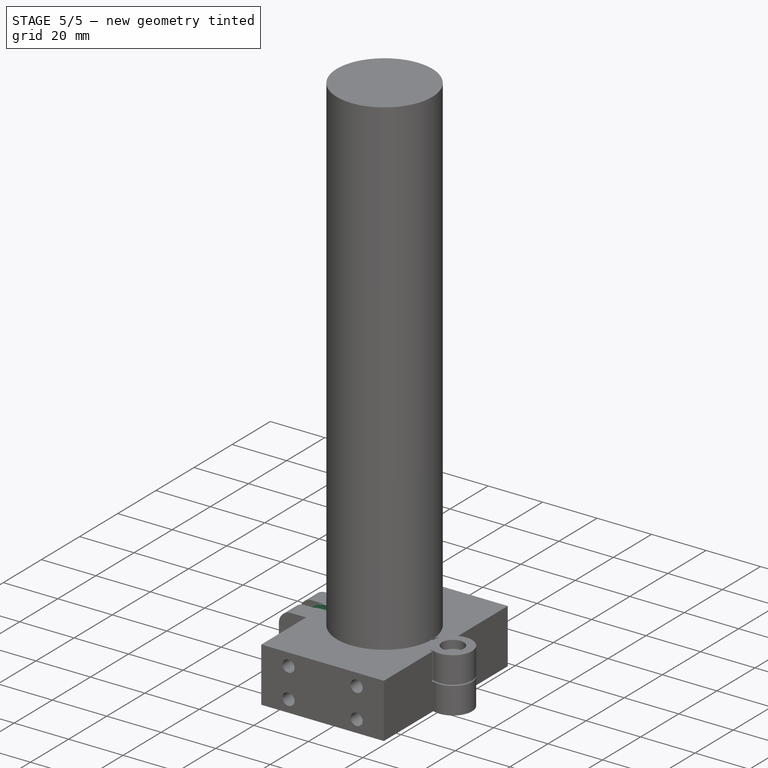
[diagram: stage 5 of 5 — iso view after this stage's code; geometry added in this stage tinted green]
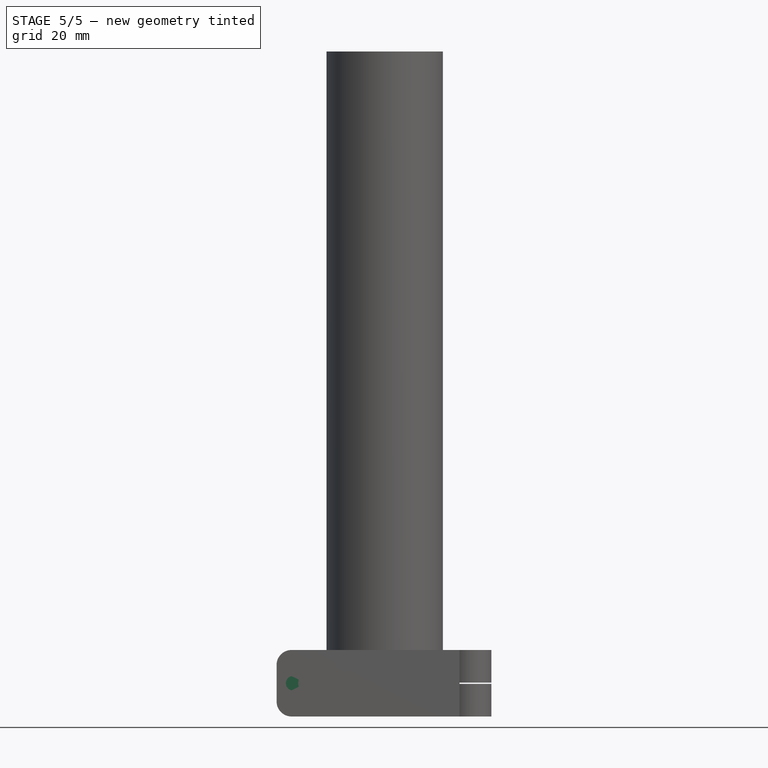
[diagram: stage 5 of 5 — front view after this stage's code; geometry added in this stage tinted green]
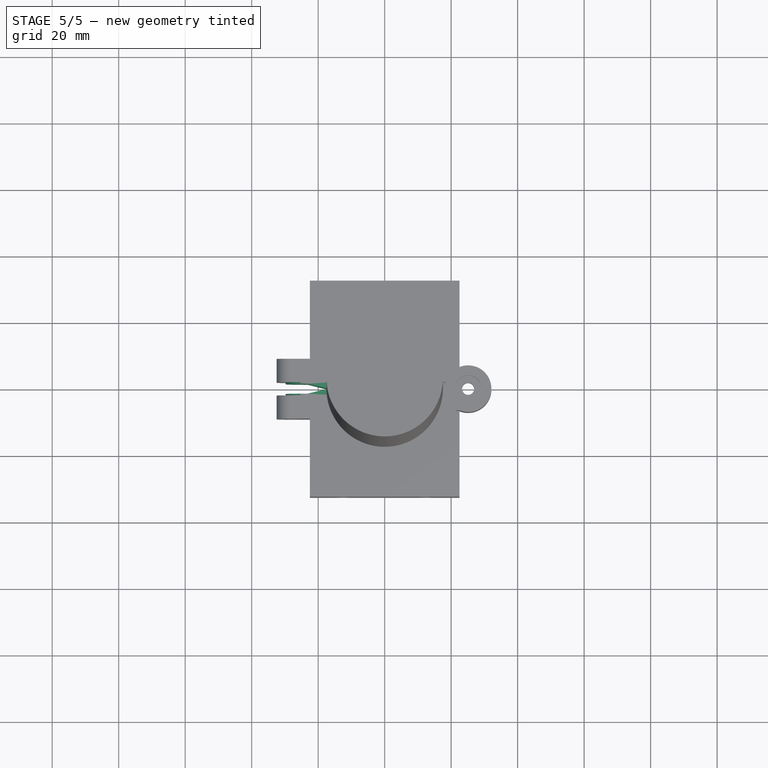
[diagram: stage 5 of 5 — top view after this stage's code; geometry added in this stage tinted green]
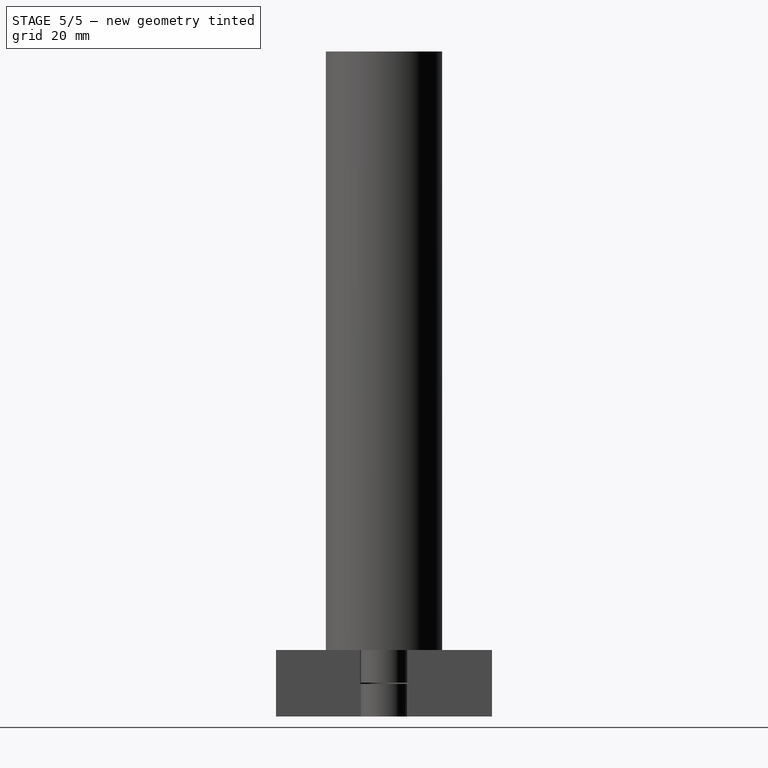
[diagram: stage 5 of 5 — right view after this stage's code; geometry added in this stage tinted green]
FEATURE [Spreadsheet::Sheet] Spreadsheet  label="p"
  cells = A1=pipe_r; B1(pipe_r)==17.5mm; A2=attachment_wall; B2(attachment_wall)==5mm; A3=attachment_size; B3(attachment_size)==20mm; A4=middle_gap; B4(middle_gap)==4mm; A5=insert_r; B5(insert_r)==2.2mm; A6=insert_hole_size; B6(insert_hole_size)==10mm; A7=insert_hole_interval_x; B7(insert_hole_interval_x)==25mm; A8=insert_hole_interval_y; B8(insert_hole_interval_y)==11mm; A9=hole_r; B9(hole_r)==1.8mm; A10=bolt_head_r; B10(bolt_head_r)==4mm; A11=horizontal_body_offset; B11(horizontal_body_offset)==pipe_r + horizontal_body_r + horizontal_body_gap; A12=horizontal_body_r; B12(horizontal_body_r)==7mm; A13=horizontal_body_gap; B13(horizontal_body_gap)==0.6mm; A14=horizontal_body_horizontal_gap; B14(horizontal_body_horizontal_gap)==0.2mm; A15=bolt_hole_offset; B15(bolt_hole_offset)==pipe_r + attachment_wall + 5mm
FEATURE [Sketcher::SketchObject] Sketch
  FullyConstrained = false
  MapMode = 5
  Support = -> [XY_Plane001]
  expr: Constraints[9] = <<p>>.pipe_r + <<p>>.attachment_wall
  expr: Constraints[0] = <<p>>.pipe_r
  sketch-geometry (10):
    g0: ArcOfCircle CenterX=-2e-16 CenterY=0.0991287 CenterZ=0 NormalX=0 NormalY=0 NormalZ=1 AngleXU=0 Radius=17.5 StartAngle=9.69525e-09 EndAngle=3.14159
    g1: LineSegment StartX=-23.1665 StartY=1.49998 StartZ=0 EndX=-23.1665 EndY=6.5 EndZ=0
    g2: LineSegment StartX=-23.1665 StartY=6.5 StartZ=0 EndX=-21.5022 EndY=6.5 EndZ=0
    g3: LineSegment StartX=-21.5022 StartY=6.5 StartZ=0 EndX=-17.4047 EndY=14.6661 EndZ=0
    g4: LineSegment StartX=17.4047 StartY=14.6661 StartZ=0 EndX=21.5022 EndY=6.5 EndZ=0
    g5: LineSegment StartX=21.5022 StartY=6.5 StartZ=0 EndX=23.1665 EndY=6.5 EndZ=0
    g6: LineSegment StartX=23.1665 StartY=6.5 StartZ=0 EndX=23.1665 EndY=1.49998 EndZ=0
    g7: ArcOfCircle CenterX=4e-16 CenterY=0.4068 CenterZ=0 NormalX=0 NormalY=0 NormalZ=1 AngleXU=0 Radius=22.5 StartAngle=0.686387 EndAngle=2.45521
    g8: LineSegment StartX=-23.1665 StartY=1.49998 StartZ=0 EndX=-17.5 EndY=0.0991289 EndZ=0
    g9: LineSegment StartX=17.5 StartY=0.0991289 StartZ=0 EndX=23.1665 EndY=1.49998 EndZ=0
  constraints (21):
    c: Radius(g0) = 17.5
    c: Coincident(g2,g1)
    c: Coincident(g3,g2)
    c: Coincident(g5,g4)
    c: Horizontal(g5)
    c: Coincident(g6,g5)
    c: Vertical(g6)
    c: Coincident(g7,g3)
    c: Coincident(g7,g4)
    c: Radius(g7) = 22.5
    c: Coincident(g8,g1)
    c: Coincident(g8,g0)
    c: Coincident(g9,g0)
    c: Coincident(g9,g6)
    c: Horizontal(g2)
    c: Equal(g2,g5)
    c: Equal(g8,g9)
    c: Symmetric(g3,g4,g-2)
    c: Symmetric(g0,g0,g-2)
    c: Equal(g1,g6)
    c: Symmetric(g5,g1,g-2)
FEATURE [PartDesign::Pad] Pad
  Direction = (1,1,1)
  Length = 20
  Length2 = 100
  Profile = -> Sketch
  Type = 0
  expr: Length = <<p>>.attachment_size
FEATURE [Sketcher::SketchObject] Sketch001
  AttachmentOffset = pos=(0,0,-1.5) rot=(0,0,1;0rad)
  ExternalGeometry = -> [Pad]
  FullyConstrained = false
  MapMode = 5
  Placement = pos=(0,1.5,3e-16) rot=(1,0,0;1.5708rad)
  Support = -> [XZ_Plane001]
  sketch-geometry (6):
    g0: LineSegment StartX=-13.2417 StartY=20 StartZ=0 EndX=-23.3317 EndY=19.9995 EndZ=0
    g1: LineSegment StartX=-13.7601 StartY=-1.78019e-07 StartZ=0 EndX=-23.8501 EndY=0.000555476 EndZ=0
    g2: LineSegment StartX=-13.2417 StartY=20 StartZ=0 EndX=-13.7601 EndY=-1.78019e-07 EndZ=0
    g3: LineSegment StartX=-29.801 StartY=13 StartZ=0 EndX=-29.7004 EndY=7.00001 EndZ=0
    g4: ArcOfCircle CenterX=-23.1825 CenterY=6.50319 CenterZ=0 NormalX=0 NormalY=0 NormalZ=1 AngleXU=0 Radius=6.53681 StartAngle=3.06552 EndAngle=4.61009
    g5: ArcOfCircle CenterX=-22.7804 CenterY=13.0005 CenterZ=0 NormalX=0 NormalY=0 NormalZ=1 AngleXU=0 Radius=7.02058 StartAngle=1.64939 EndAngle=3.14167
  constraints (8):
    c: Coincident(g3,g4)
    c: Coincident(g3,g5)
    c: Coincident(g1,g4)
    c: Coincident(g0,g5)
    c: Coincident(g1,g2)
    c: Coincident(g0,g2)
    c: DistanceX(g0,g0) = 10.09
    c: Equal(g1,g0)
FEATURE [PartDesign::Pad] Pad001
  BaseFeature = -> Pad
  Direction = (1,1,1)
  Length = 5
  Length2 = 100
  Profile = -> Sketch001
  Reversed = true
  Type = 0
  expr: Length = <<p>>.attachment_wall
FEATURE [PartDesign::Body] Body  label="25 mm attachment body"
  Group = -> [Sketch,Pad,Sketch001,Pad001]
  Origin = -> Origin001
  Tip = -> Pad001
FEATURE [Part::Mirroring] Part__Mirroring  label="25 mm attachment body (Mirror #1)"
  Base = (0,0,0)
  Normal = (0,1,0)
  Source = -> Body
FEATURE [Part::Cylinder] Cylinder  label="bolt hole"
  Angle = 360
  AttacherType = Attacher::AttachEngine3D
  Height = 20
  Placement = pos=(0,10,0) rot=(1,0,0;1.5708rad)
  Radius = 1.8
  expr: Radius = <<p>>.hole_r
FEATURE [Part::Cylinder] Cylinder001  label="bolt head hole"
  Angle = 360
  AttacherType = Attacher::AttachEngine3D
  Height = 20
  Placement = pos=(0,0,0) rot=(1,0,0;1.5708rad)
  Radius = 4
  expr: Radius = <<p>>.bolt_head_r
FEATURE [Part::MultiFuse] Fusion  label="bolt hole fusion"
  Placement = pos=(-22,-5,10) rot=(0,0,1;0rad)
  Shapes = -> [Cylinder,Cylinder001]
  expr: .Placement.Base.z = <<p>>.attachment_size / 2
FEATURE [Part::Cylinder] Cylinder006  label="horizontal bolt hole"
  Angle = 360
  AttacherType = Attacher::AttachEngine3D
  Height = 20
  Radius = 1.8
  expr: Radius = <<p>>.hole_r
  expr: Height = <<p>>.attachment_size
FEATURE [Part::Cylinder] Cylinder007  label="horizontal bolt head hole"
  Angle = 360
  AttacherType = Attacher::AttachEngine3D
  Height = 20
  Placement = pos=(0,0,17) rot=(0,0,1;0rad)
  Radius = 4
  expr: Radius = <<p>>.bolt_head_r
  expr: Height = <<p>>.attachment_size
  expr: .Placement.Base.z = <<p>>.attachment_size - 3mm
FEATURE [Part::MultiFuse] Fusion003  label="horizontal bolt hole fusion"
  Placement = pos=(25.1,0,0) rot=(0,0,1;0rad)
  Shapes = -> [Cylinder006,Cylinder007]
  expr: .Placement.Base.x = <<p>>.horizontal_body_offset
FEATURE [Part::Cylinder] Cylinder009  label="horizontal body"
  Angle = 360
  AttacherType = Attacher::AttachEngine3D
  Height = 9.8
  Placement = pos=(25.1,0,0) rot=(0,0,1;0rad)
  Radius = 7
  expr: Height = <<p>>.attachment_size / 2 - <<p>>.horizontal_body_horizontal_gap
  expr: .Placement.Base.x = <<p>>.horizontal_body_offset
  expr: Radius = <<p>>.horizontal_body_r
FEATURE [Part::Mirroring] Part__Mirroring001  label="horizontal body (Mirror #2)"
  Base = (0,0,10)
  Normal = (0,0,1)
  Source = -> Cylinder009
  expr: .Base.z = <<p>>.attachment_size / 2
FEATURE [Part::Mirroring] Part__Mirroring002  label="horizontal body space (Mirror #3)"
  Base = (0,0,10)
  Normal = (0,0,1)
  Source = -> Cylinder010
  expr: .Base.z = <<p>>.attachment_size / 2
FEATURE [Part::MultiFuse] Fusion004  label="25 mm attachment fusion (Mirror #1)"
  Shapes = -> [Part__Mirroring001,Part__Mirroring]
FEATURE [Part::MultiFuse] Fusion005  label="25 mm attachment extract (Mirror #1)"
  Shapes = -> [Fusion,Part__Mirroring002,Fusion003]
FEATURE [Part::Cut] Cut  label="35 mm attachment holed cut"
  Base = -> Fusion004
  Tool = -> Fusion005
FEATURE [Part::MultiFuse] Fusion006  label="25 mm attachment fusion"
  Shapes = -> [Cylinder009,Body]
FEATURE [Part::MultiFuse] Fusion007  label="25 mm attachment extract"
  Shapes = -> [Cylinder002,Cylinder010,Cylinder008]
FEATURE [Part::Cut] Cut023015002  label="35 mm attachment inserted cut"
  Base = -> Fusion006
  Tool = -> Fusion007
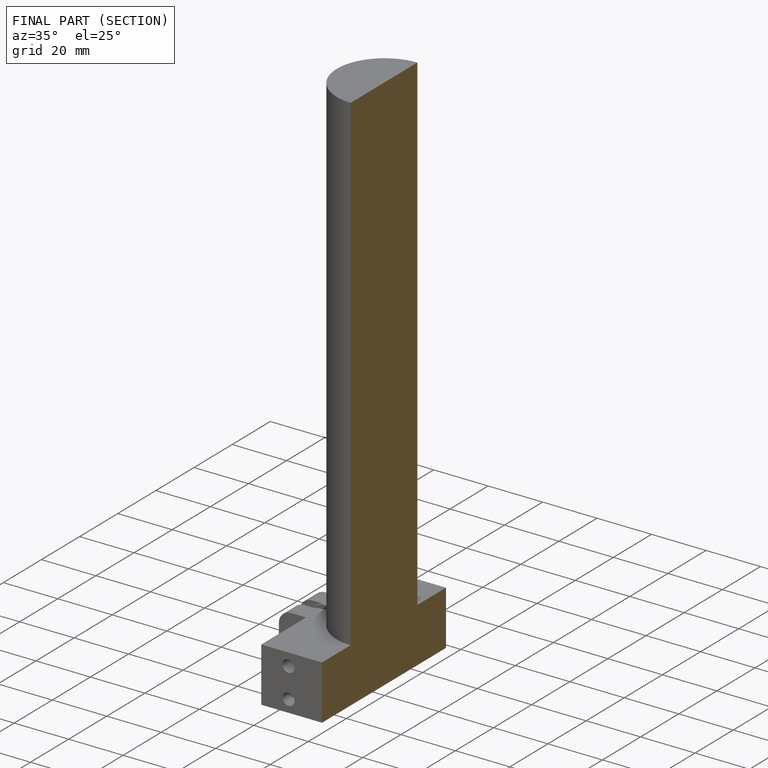
[diagram: finished part — half-section view (interior)]
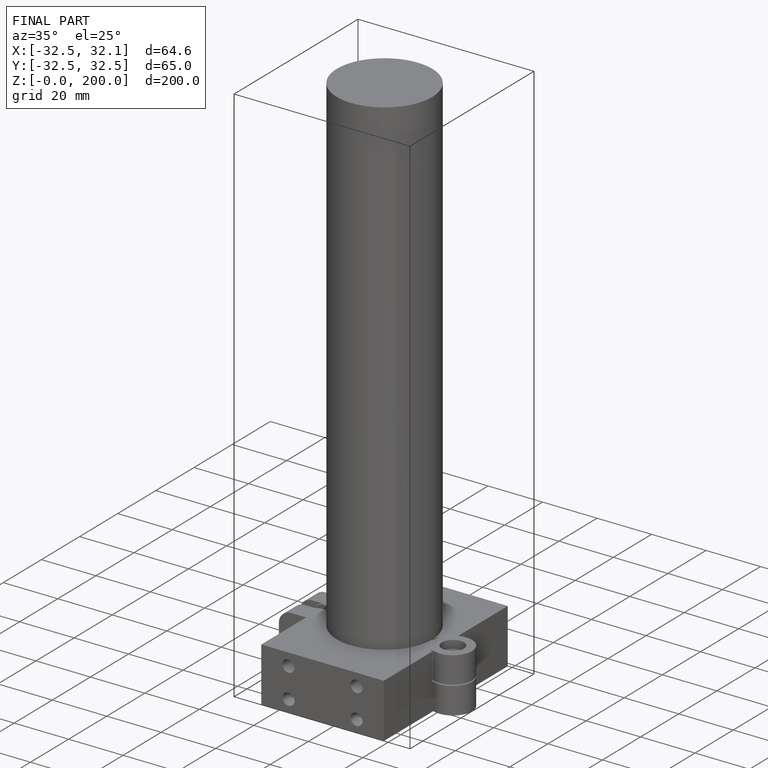
[diagram: finished part — iso view with bounding-box wireframe]
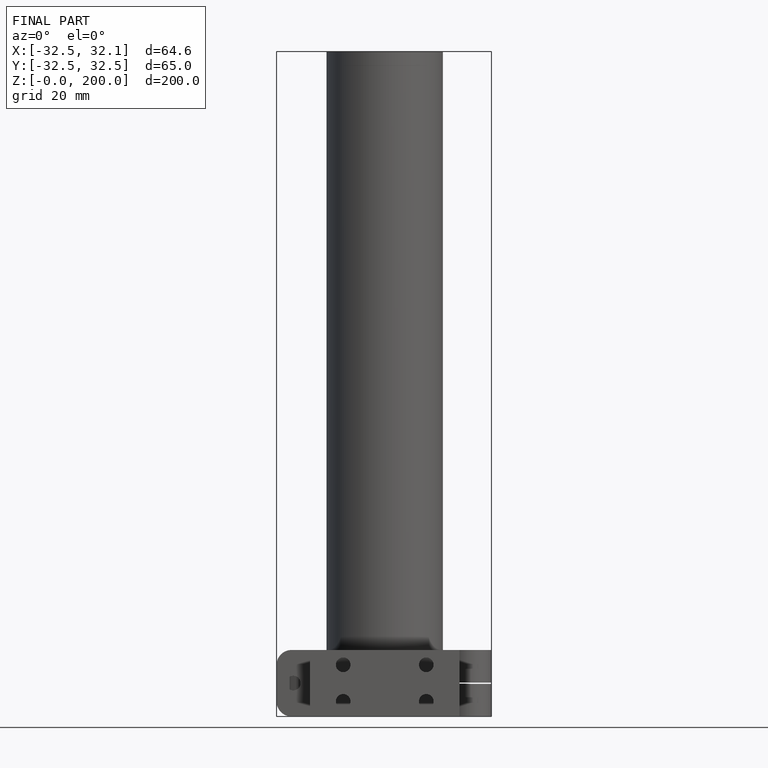
[diagram: finished part — front view with bounding-box wireframe]
